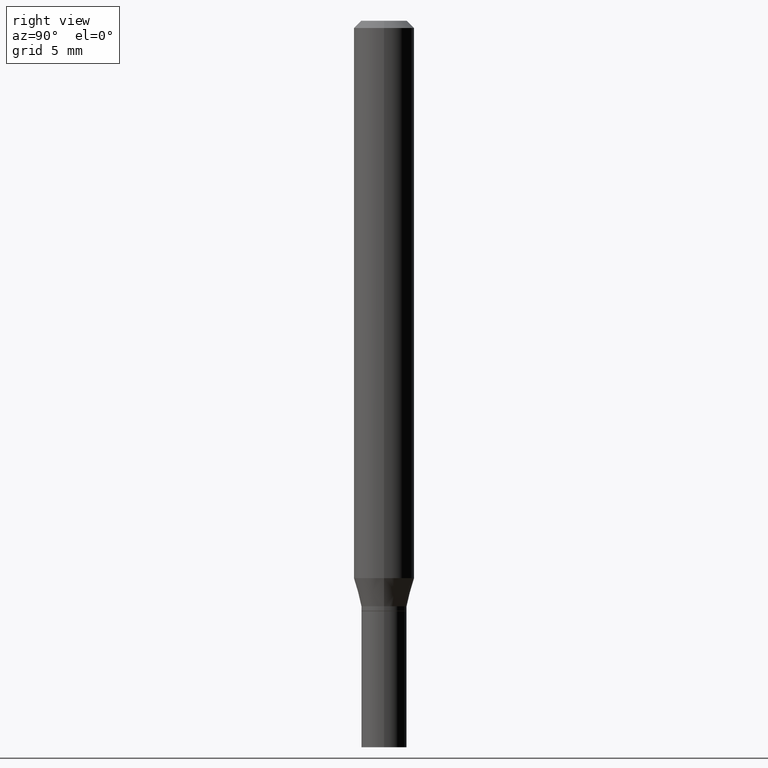
[diagram: clean part render]
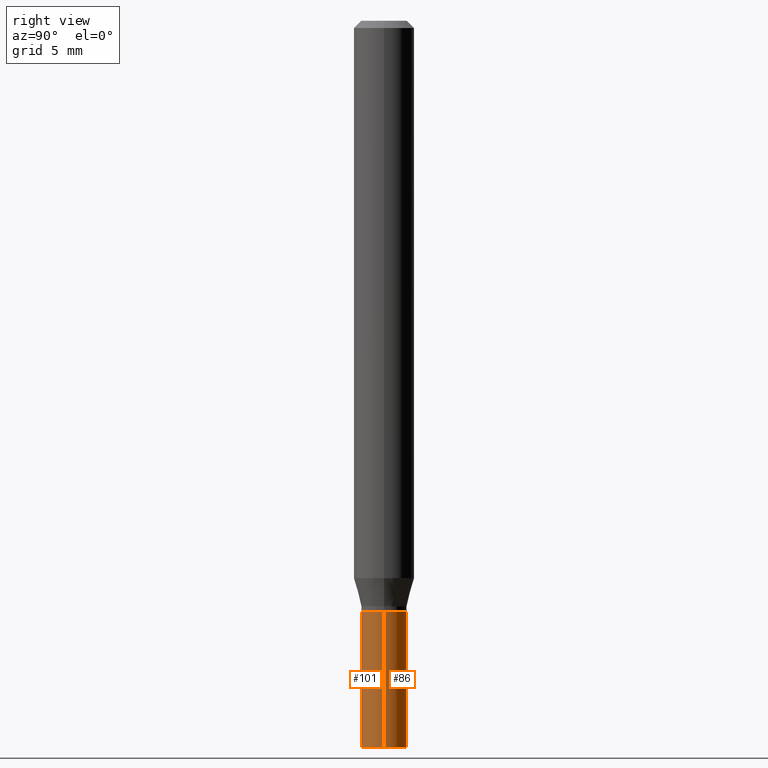
[diagram: same view with one multi-face feature highlighted, each face labeled with its STEP entity id]
A machine part, right view. The highlighted faces form ONE feature: a constant-radius fillet chain: 2 tangent blend faces with common blend radius 1.1913 mm. The faces share edges in the B-rep.
Their STEP definitions:
[1] entity #101 (Cylinder):
#11 = ORIENTED_EDGE ( 'NONE', *, *, #418, .F. ) ;
#29 = CIRCLE ( 'NONE', #292, 0.04689999999999999725 ) ;
#30 = DIRECTION ( 'NONE',  ( -2.445468806185136877E-29, 3.491481338843145188E-15, 1.000000000000000000 ) ) ;
#43 = CARTESIAN_POINT ( 'NONE',  ( -0.04689999999999999725, -4.413424337085770168E-15, -1.500000000000000222 ) ) ;
#77 = CARTESIAN_POINT ( 'NONE',  ( 3.668203209277704895E-29, -5.237222008264718177E-15, -1.500000000000000222 ) ) ;
#81 = DIRECTION ( 'NONE',  ( -2.445468806185136877E-29, 3.491481338843145188E-15, 1.000000000000000000 ) ) ;
#83 = DIRECTION ( 'NONE',  ( -2.445468806185136597E-29, 3.491481338843145583E-15, 1.000000000000000000 ) ) ;
#84 = VERTEX_POINT ( 'NONE', #43 ) ;
#90 = CARTESIAN_POINT ( 'NONE',  ( -0.04689999999999999725, 3.332445430714869676E-16, -2.306980557329550952E-30 ) ) ;
#93 = DIRECTION ( 'NONE',  ( 1.000000000000000000, -6.982962677686266711E-15, 0.000000000000000000 ) ) ;
#95 = VECTOR ( 'NONE', #30, 39.37007874015748143 ) ;
#101 = ADVANCED_FACE ( 'NONE', ( #152 ), #428, .T. ) ;
#105 = EDGE_LOOP ( 'NONE', ( #282, #401, #384, #11 ) ) ;
#111 = LINE ( 'NONE', #90, #405 ) ;
#129 = DIRECTION ( 'NONE',  ( -2.445468806185136597E-29, 3.491481338843145583E-15, 1.000000000000000000 ) ) ;
#152 = FACE_OUTER_BOUND ( 'NONE', #105, .T. ) ;
#157 = EDGE_CURVE ( 'NONE', #84, #196, #111, .T. ) ;
#174 = LINE ( 'NONE', #380, #95 ) ;
#180 = AXIS2_PLACEMENT_3D ( 'NONE', #293, #182, #325 ) ;
#182 = DIRECTION ( 'NONE',  ( -2.445468806185136597E-29, 3.491481338843145583E-15, 1.000000000000000000 ) ) ;
#190 = CARTESIAN_POINT ( 'NONE',  ( -0.04689999999999999725, -4.413424337085770168E-15, -1.219000000000000083 ) ) ;
#196 = VERTEX_POINT ( 'NONE', #190 ) ;
#223 = CARTESIAN_POINT ( 'NONE',  ( 0.04689999999999999725, -4.583616701633280419E-15, -1.219000000000000083 ) ) ;
#232 = CARTESIAN_POINT ( 'NONE',  ( 0.04689999999999999725, -5.564722957848204079E-15, -1.500000000000000222 ) ) ;
#245 = VERTEX_POINT ( 'NONE', #232 ) ;
#282 = ORIENTED_EDGE ( 'NONE', *, *, #157, .F. ) ;
#292 = AXIS2_PLACEMENT_3D ( 'NONE', #419, #129, #93 ) ;
#293 = CARTESIAN_POINT ( 'NONE',  ( 0.000000000000000000, 0.000000000000000000, 0.000000000000000000 ) ) ;
#304 = AXIS2_PLACEMENT_3D ( 'NONE', #77, #83, #402 ) ;
#316 = EDGE_CURVE ( 'NONE', #84, #245, #458, .T. ) ;
#318 = VERTEX_POINT ( 'NONE', #223 ) ;
#325 = DIRECTION ( 'NONE',  ( 1.000000000000000000, -6.982962677686266711E-15, 4.876176775795936353E-29 ) ) ;
#380 = CARTESIAN_POINT ( 'NONE',  ( 0.04689999999999999725, -3.275009495834859024E-16, 2.286926907848294038E-30 ) ) ;
#384 = ORIENTED_EDGE ( 'NONE', *, *, #396, .T. ) ;
#396 = EDGE_CURVE ( 'NONE', #245, #318, #174, .T. ) ;
#401 = ORIENTED_EDGE ( 'NONE', *, *, #316, .T. ) ;
#402 = DIRECTION ( 'NONE',  ( 1.000000000000000000, -6.982962677686256455E-15, 0.000000000000000000 ) ) ;
#405 = VECTOR ( 'NONE', #81, 39.37007874015748143 ) ;
#418 = EDGE_CURVE ( 'NONE', #196, #318, #29, .T. ) ;
#419 = CARTESIAN_POINT ( 'NONE',  ( 2.981026474739681628E-29, -4.256115752049794517E-15, -1.219000000000000083 ) ) ;
#428 = CYLINDRICAL_SURFACE ( 'NONE', #180, 0.04689999999999999725 ) ;
#458 = CIRCLE ( 'NONE', #304, 0.04689999999999999725 ) ;
[2] entity #86 (Cylinder):
#8 = DIRECTION ( 'NONE',  ( -2.445468806185136597E-29, 3.491481338843145583E-15, 1.000000000000000000 ) ) ;
#15 = DIRECTION ( 'NONE',  ( -2.445468806185136597E-29, 3.491481338843145583E-15, 1.000000000000000000 ) ) ;
#30 = DIRECTION ( 'NONE',  ( -2.445468806185136877E-29, 3.491481338843145188E-15, 1.000000000000000000 ) ) ;
#43 = CARTESIAN_POINT ( 'NONE',  ( -0.04689999999999999725, -4.413424337085770168E-15, -1.500000000000000222 ) ) ;
#81 = DIRECTION ( 'NONE',  ( -2.445468806185136877E-29, 3.491481338843145188E-15, 1.000000000000000000 ) ) ;
#84 = VERTEX_POINT ( 'NONE', #43 ) ;
#86 = ADVANCED_FACE ( 'NONE', ( #328 ), #464, .T. ) ;
#88 = CIRCLE ( 'NONE', #341, 0.04689999999999999725 ) ;
#90 = CARTESIAN_POINT ( 'NONE',  ( -0.04689999999999999725, 3.332445430714869676E-16, -2.306980557329550952E-30 ) ) ;
#95 = VECTOR ( 'NONE', #30, 39.37007874015748143 ) ;
#104 = AXIS2_PLACEMENT_3D ( 'NONE', #369, #155, #448 ) ;
#111 = LINE ( 'NONE', #90, #405 ) ;
#155 = DIRECTION ( 'NONE',  ( -2.445468806185136597E-29, 3.491481338843145583E-15, 1.000000000000000000 ) ) ;
#157 = EDGE_CURVE ( 'NONE', #84, #196, #111, .T. ) ;
#162 = ORIENTED_EDGE ( 'NONE', *, *, #396, .F. ) ;
#174 = LINE ( 'NONE', #380, #95 ) ;
#184 = CARTESIAN_POINT ( 'NONE',  ( 0.000000000000000000, 0.000000000000000000, 0.000000000000000000 ) ) ;
#190 = CARTESIAN_POINT ( 'NONE',  ( -0.04689999999999999725, -4.413424337085770168E-15, -1.219000000000000083 ) ) ;
#196 = VERTEX_POINT ( 'NONE', #190 ) ;
#217 = DIRECTION ( 'NONE',  ( 1.000000000000000000, -6.982962677686266711E-15, 4.876176775795936353E-29 ) ) ;
#220 = EDGE_CURVE ( 'NONE', #245, #84, #88, .T. ) ;
#223 = CARTESIAN_POINT ( 'NONE',  ( 0.04689999999999999725, -4.583616701633280419E-15, -1.219000000000000083 ) ) ;
#232 = CARTESIAN_POINT ( 'NONE',  ( 0.04689999999999999725, -5.564722957848204079E-15, -1.500000000000000222 ) ) ;
#245 = VERTEX_POINT ( 'NONE', #232 ) ;
#267 = EDGE_CURVE ( 'NONE', #318, #196, #291, .T. ) ;
#291 = CIRCLE ( 'NONE', #104, 0.04689999999999999725 ) ;
#296 = ORIENTED_EDGE ( 'NONE', *, *, #220, .T. ) ;
#314 = ORIENTED_EDGE ( 'NONE', *, *, #267, .F. ) ;
#318 = VERTEX_POINT ( 'NONE', #223 ) ;
#328 = FACE_OUTER_BOUND ( 'NONE', #367, .T. ) ;
#332 = DIRECTION ( 'NONE',  ( 1.000000000000000000, -6.982962677686256455E-15, 0.000000000000000000 ) ) ;
#341 = AXIS2_PLACEMENT_3D ( 'NONE', #450, #15, #332 ) ;
#367 = EDGE_LOOP ( 'NONE', ( #296, #451, #314, #162 ) ) ;
#369 = CARTESIAN_POINT ( 'NONE',  ( 2.981026474739681628E-29, -4.256115752049794517E-15, -1.219000000000000083 ) ) ;
#370 = AXIS2_PLACEMENT_3D ( 'NONE', #184, #8, #217 ) ;
#380 = CARTESIAN_POINT ( 'NONE',  ( 0.04689999999999999725, -3.275009495834859024E-16, 2.286926907848294038E-30 ) ) ;
#396 = EDGE_CURVE ( 'NONE', #245, #318, #174, .T. ) ;
#405 = VECTOR ( 'NONE', #81, 39.37007874015748143 ) ;
#448 = DIRECTION ( 'NONE',  ( 1.000000000000000000, -6.982962677686266711E-15, 0.000000000000000000 ) ) ;
#450 = CARTESIAN_POINT ( 'NONE',  ( 3.668203209277704895E-29, -5.237222008264718177E-15, -1.500000000000000222 ) ) ;
#451 = ORIENTED_EDGE ( 'NONE', *, *, #157, .T. ) ;
#464 = CYLINDRICAL_SURFACE ( 'NONE', #370, 0.04689999999999999725 ) ;